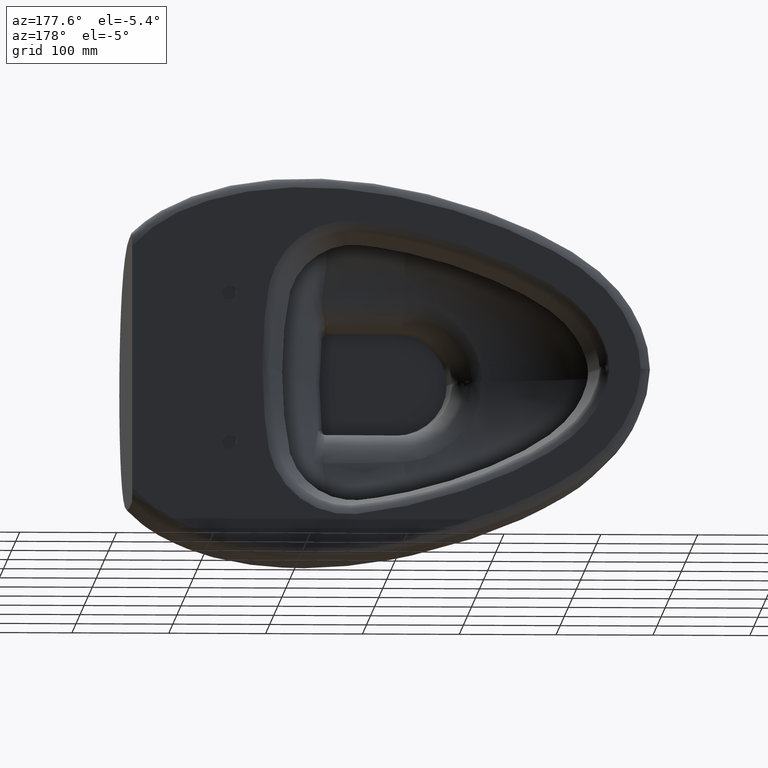
[diagram: clean part render]
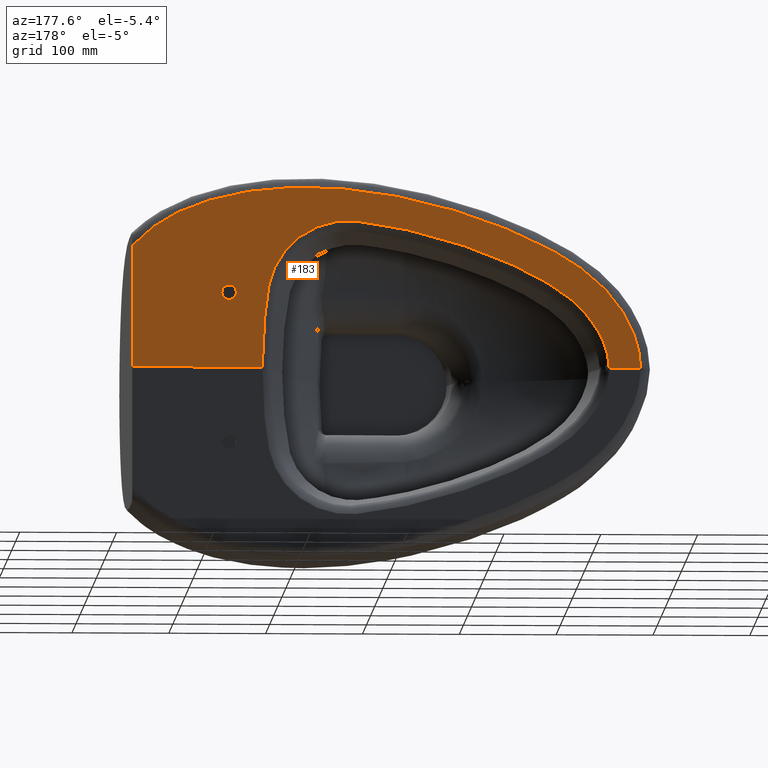
[diagram: same view with one face highlighted and labeled with its STEP entity id]
A machine part, auxiliary view. The second image highlights one B-rep face of the part: STEP entity #183.
In plain terms, the highlighted planar face has unit normal (-0, -1, 0).
Its self-contained STEP definition (entity closure, byte-faithful):
#41=PLANE('',#1040);
#108=LINE('',#6482,#110);
#110=VECTOR('',#1061,1.);
#123=FACE_BOUND('',#348,.T.);
#124=FACE_BOUND('',#349,.T.);
#127=CIRCLE('',#1038,7.5);
#183=ADVANCED_FACE('',(#123,#124),#41,.F.);
#348=EDGE_LOOP('',(#604,#605,#606,#607,#608));
#349=EDGE_LOOP('',(#609));
#604=ORIENTED_EDGE('',*,*,#847,.F.);
#605=ORIENTED_EDGE('',*,*,#822,.F.);
#606=ORIENTED_EDGE('',*,*,#883,.F.);
#607=ORIENTED_EDGE('',*,*,#821,.F.);
#608=ORIENTED_EDGE('',*,*,#888,.F.);
#609=ORIENTED_EDGE('',*,*,#846,.F.);
#665=VERTEX_POINT('',#1109);
#704=VERTEX_POINT('',#3172);
#705=VERTEX_POINT('',#3179);
#711=VERTEX_POINT('',#3904);
#724=VERTEX_POINT('',#6480);
#725=VERTEX_POINT('',#6483);
#821=EDGE_CURVE('',#711,#704,#966,.T.);
#822=EDGE_CURVE('',#705,#665,#967,.T.);
#846=EDGE_CURVE('',#724,#724,#127,.T.);
#847=EDGE_CURVE('',#665,#725,#108,.T.);
#883=EDGE_CURVE('',#704,#705,#1011,.T.);
#888=EDGE_CURVE('',#725,#711,#1015,.T.);
#966=B_SPLINE_CURVE_WITH_KNOTS('',3,(#4193,#4194,#4195,#4196),
 .UNSPECIFIED.,.F.,.F.,(4,4),(0.,1.),.UNSPECIFIED.);
#967=B_SPLINE_CURVE_WITH_KNOTS('',3,(#4197,#4198,#4199,#4200),
 .UNSPECIFIED.,.F.,.F.,(4,4),(0.,1.),.UNSPECIFIED.);
#1011=B_SPLINE_CURVE_WITH_KNOTS('',3,(#8298,#8299,#8300,#8301,#8302,#8303,
#8304,#8305,#8306,#8307,#8308,#8309,#8310,#8311,#8312,#8313,#8314,#8315,
#8316,#8317,#8318,#8319,#8320,#8321,#8322,#8323,#8324,#8325,#8326,#8327,
#8328,#8329,#8330,#8331,#8332,#8333,#8334,#8335,#8336,#8337,#8338,#8339,
#8340,#8341,#8342,#8343),.UNSPECIFIED.,.F.,.F.,(4,2,2,2,2,2,2,2,2,2,2,2,
2,2,2,2,2,2,2,2,2,2,4),(0.,0.0312500000000001,0.0625000000000001,0.0937500000000001,
0.125,0.1875,0.25,0.3125,0.375,0.5,0.5625,0.59375,0.625,0.65625,0.6875,
0.71875,0.75,0.78125,0.8125,0.84375,0.859375,0.875,1.),.UNSPECIFIED.);
#1015=B_SPLINE_CURVE_WITH_KNOTS('',3,(#9017,#9018,#9019,#9020,#9021,#9022,
#9023,#9024,#9025,#9026,#9027,#9028,#9029,#9030,#9031,#9032,#9033,#9034,
#9035,#9036,#9037,#9038,#9039,#9040,#9041,#9042,#9043,#9044,#9045,#9046,
#9047,#9048,#9049,#9050,#9051,#9052,#9053,#9054),.UNSPECIFIED.,.F.,.F.,
(4,2,2,2,2,2,2,2,2,2,2,2,2,2,2,2,2,2,4),(0.,0.03125,0.0625000000000001,
0.125,0.1875,0.25,0.3125,0.375,0.5,0.625,0.6875,0.75,0.78125,0.8125,0.875,
0.90625,0.9375,0.96875,1.),.UNSPECIFIED.);
#1038=AXIS2_PLACEMENT_3D('',#6479,#1057,#1058);
#1040=AXIS2_PLACEMENT_3D('',#9305,#1064,#1065);
#1057=DIRECTION('',(2.08906072504006E-12,0.999999999998824,-1.53375202153368E-6));
#1058=DIRECTION('',(0.999999999996463,1.99099995749445E-12,2.66013738999445E-6));
#1061=DIRECTION('',(-2.66013738983962E-6,1.53375206954884E-6,0.999999999995286));
#1064=DIRECTION('',(-2.08906072504006E-12,-0.999999999998824,1.53375202153368E-6));
#1065=DIRECTION('',(-0.999999999996462,-1.99090743890906E-12,-2.66013738983717E-6));
#1109=CARTESIAN_POINT('',(467.87353277805,419.445535377946,-34.6734752408675));
#3172=CARTESIAN_POINT('',(-24.7997337391088,419.445535359529,-34.6856492316611));
#3179=CARTESIAN_POINT('',(333.645104044754,419.445535359895,-34.6851724754035));
#3904=CARTESIAN_POINT('',(-57.1264671884628,419.445535359166,-34.6856922284373));
#4193=CARTESIAN_POINT('',(-57.1264671913478,419.445535360289,-34.6846846846847));
#4194=CARTESIAN_POINT('',(-46.3508893743625,419.445535360288,-34.6846846846847));
#4195=CARTESIAN_POINT('',(-35.5753115573771,419.445535360288,-34.6846846846847));
#4196=CARTESIAN_POINT('',(-24.7997337403917,419.445535360287,-34.6846846846847));
#4197=CARTESIAN_POINT('',(333.645104044105,419.44553536027,-34.6846846846847));
#4198=CARTESIAN_POINT('',(378.387913632287,419.445535360267,-34.6846846846847));
#4199=CARTESIAN_POINT('',(423.13072322047,419.445535360265,-34.6846846846847));
#4200=CARTESIAN_POINT('',(467.873532808652,419.445535360263,-34.6846846846847));
#6479=CARTESIAN_POINT('',(367.873326649181,419.445654225371,42.8144307858358));
#6480=CARTESIAN_POINT('',(375.373326649143,419.445654225399,42.8144507368562));
#6482=CARTESIAN_POINT('',(467.873532809475,419.445535359795,-34.6853032000602));
#6483=CARTESIAN_POINT('',(467.873199259275,419.445727674407,90.703032421736));
#8298=CARTESIAN_POINT('',(-24.7997337378259,419.445535358808,-34.6866137786375));
#8299=CARTESIAN_POINT('',(-24.7997486867091,419.445543977866,-29.067023094081));
#8300=CARTESIAN_POINT('',(-23.8580570201959,419.445552337817,-23.6163689065647));
#8301=CARTESIAN_POINT('',(-21.0585375472789,419.445568805643,-12.8794098392197));
#8302=CARTESIAN_POINT('',(-19.1050853361648,419.44557687588,-7.61764643159749));
#8303=CARTESIAN_POINT('',(-14.4029449053975,419.445592140316,2.33470955853687));
#8304=CARTESIAN_POINT('',(-11.6390865767862,419.445599424419,7.08391826154849));
#8305=CARTESIAN_POINT('',(-5.38047872642267,419.445613376243,16.1804591324653));
#8306=CARTESIAN_POINT('',(-1.86353847066577,419.445620066366,20.5423958823389));
#8307=CARTESIAN_POINT('',(9.35583131191829,419.445638714394,32.7008490016457));
#8308=CARTESIAN_POINT('',(17.8220860872198,419.445649455459,39.7039905390021));
#8309=CARTESIAN_POINT('',(36.0488998022234,419.445668719422,52.2640400214514));
#8310=CARTESIAN_POINT('',(45.6162819479296,419.445677143981,57.7568305476614));
#8311=CARTESIAN_POINT('',(65.0208117044415,419.445692663107,67.8752633603904));
#8312=CARTESIAN_POINT('',(74.9185024872398,419.445699729173,72.4823232383276));
#8313=CARTESIAN_POINT('',(94.9829127455191,419.445712906621,81.0739918405798));
#8314=CARTESIAN_POINT('',(105.157560481248,419.445718989866,85.0402569648531));
#8315=CARTESIAN_POINT('',(136.072519705858,419.445735852029,96.034359352315));
#8316=CARTESIAN_POINT('',(157.242885971237,419.445745329158,102.213437388219));
#8317=CARTESIAN_POINT('',(189.416613469058,419.445756681939,109.615447716477));
#8318=CARTESIAN_POINT('',(200.184779792105,419.445759963813,111.755230838506));
#8319=CARTESIAN_POINT('',(216.404287702244,419.445764111147,114.459297885079));
#8320=CARTESIAN_POINT('',(221.821921130558,419.445765365274,115.276990198978));
#8321=CARTESIAN_POINT('',(232.680073325642,419.445767609696,116.740359702561));
#8322=CARTESIAN_POINT('',(238.110090034194,419.445768721065,117.464974455359));
#8323=CARTESIAN_POINT('',(249.149531647207,419.445768875533,117.56570202978));
#8324=CARTESIAN_POINT('',(254.811589231628,419.445768100375,117.060309971398));
#8325=CARTESIAN_POINT('',(265.760719815807,419.445764874136,114.956830575743));
#8326=CARTESIAN_POINT('',(271.086802969972,419.445762446985,113.374344762451));
#8327=CARTESIAN_POINT('',(281.438530281494,419.445755945565,109.135460591787));
#8328=CARTESIAN_POINT('',(286.431533621945,419.445751868901,106.477499373083));
#8329=CARTESIAN_POINT('',(295.674702726125,419.44574240544,100.307374106124));
#8330=CARTESIAN_POINT('',(299.994717490403,419.445736966234,96.7610396910171));
#8331=CARTESIAN_POINT('',(307.927759997257,419.445724725775,88.7803222181602));
#8332=CARTESIAN_POINT('',(311.432206922505,419.445718096183,84.4578599158323));
#8333=CARTESIAN_POINT('',(317.55210557173,419.445703857021,75.1739937850945));
#8334=CARTESIAN_POINT('',(320.18580685463,419.44569615113,70.1497879679699));
#8335=CARTESIAN_POINT('',(324.351219257267,419.445680263667,59.7912330220548));
#8336=CARTESIAN_POINT('',(325.908488463676,419.445672081591,54.4565554708772));
#8337=CARTESIAN_POINT('',(327.423678741414,419.445659436193,46.211809857281));
#8338=CARTESIAN_POINT('',(327.814551310803,419.445655166708,43.4281237481652));
#8339=CARTESIAN_POINT('',(328.618546409254,419.445646653527,37.8775659025235));
#8340=CARTESIAN_POINT('',(328.998081890703,419.445642394358,35.1006061717735));
#8341=CARTESIAN_POINT('',(332.213646145021,419.445604038861,10.0929837624876));
#8342=CARTESIAN_POINT('',(333.645044344272,419.445569781326,-12.242785633236));
#8343=CARTESIAN_POINT('',(333.645104045403,419.445535359522,-34.6856602661224));
#9017=CARTESIAN_POINT('',(467.873199259275,419.445727674402,90.703032421736));
#9018=CARTESIAN_POINT('',(463.446691448278,419.445735071376,95.5258230200295));
#9019=CARTESIAN_POINT('',(458.760368720217,419.445742018338,100.05520716048));
#9020=CARTESIAN_POINT('',(448.830262497678,419.445754946712,108.484440421955));
#9021=CARTESIAN_POINT('',(443.543936407475,419.445760946598,112.396333866986));
#9022=CARTESIAN_POINT('',(427.130907086106,419.445777129904,122.947760117041));
#9023=CARTESIAN_POINT('',(415.490093288154,419.445785642927,128.49820070006));
#9024=CARTESIAN_POINT('',(391.275340871665,419.445799629956,137.617652744337));
#9025=CARTESIAN_POINT('',(378.68316709681,419.44580512554,141.200734048177));
#9026=CARTESIAN_POINT('',(353.393997422872,419.445813676139,146.775654919723));
#9027=CARTESIAN_POINT('',(340.606028487494,419.445816725607,148.763877726029));
#9028=CARTESIAN_POINT('',(314.785965638304,419.445820737447,151.379545740419));
#9029=CARTESIAN_POINT('',(301.776025418227,419.445821684659,151.997106459684));
#9030=CARTESIAN_POINT('',(276.035385601439,419.445821785352,152.062722476102));
#9031=CARTESIAN_POINT('',(263.236722415421,419.445820949727,151.517881431452));
#9032=CARTESIAN_POINT('',(225.023604853779,419.445816181807,148.409165339424));
#9033=CARTESIAN_POINT('',(199.789186132762,419.445810023534,144.393962043728));
#9034=CARTESIAN_POINT('',(149.722741933908,419.445792731759,133.119727544835));
#9035=CARTESIAN_POINT('',(124.765097046156,419.445781519777,125.809527736998));
#9036=CARTESIAN_POINT('',(88.5100636315138,419.445761266842,112.604647831433));
#9037=CARTESIAN_POINT('',(76.5950232345005,419.445753931066,107.821736321251));
#9038=CARTESIAN_POINT('',(53.1589685696766,419.44573790384,97.3720188002416));
#9039=CARTESIAN_POINT('',(41.6328604224174,419.445729229914,91.716639574843));
#9040=CARTESIAN_POINT('',(24.7667098331442,419.445714763624,82.284654847208));
#9041=CARTESIAN_POINT('',(19.2163375212301,419.445709694915,78.9798693628522));
#9042=CARTESIAN_POINT('',(8.32051860843461,419.445698852433,71.9106011923603));
#9043=CARTESIAN_POINT('',(2.97173189457601,419.445693066243,68.1380217507568));
#9044=CARTESIAN_POINT('',(-12.3180720253502,419.445674666764,56.1416171104924));
#9045=CARTESIAN_POINT('',(-21.5930970352815,419.445660901906,47.1669736074394));
#9046=CARTESIAN_POINT('',(-33.7293848918116,419.445637355636,31.814886346696));
#9047=CARTESIAN_POINT('',(-37.4411536316816,419.445629071519,26.4136706418972));
#9048=CARTESIAN_POINT('',(-43.9961747353958,419.445611887457,15.2097238736239));
#9049=CARTESIAN_POINT('',(-46.8639206208567,419.445602945376,9.37952050552592));
#9050=CARTESIAN_POINT('',(-51.6861053870577,419.445584281007,-2.78957831696623));
#9051=CARTESIAN_POINT('',(-53.5977858826664,419.445574720005,-9.02331464610132));
#9052=CARTESIAN_POINT('',(-56.2946735022484,419.445555324631,-21.6690218451211));
#9053=CARTESIAN_POINT('',(-57.1264847237297,419.445545468912,-28.0949116491833));
#9054=CARTESIAN_POINT('',(-57.1264671886676,419.445535358744,-34.6866997721894));
#9305=CARTESIAN_POINT('',(170.265023274951,419.445807671531,142.860425878265));